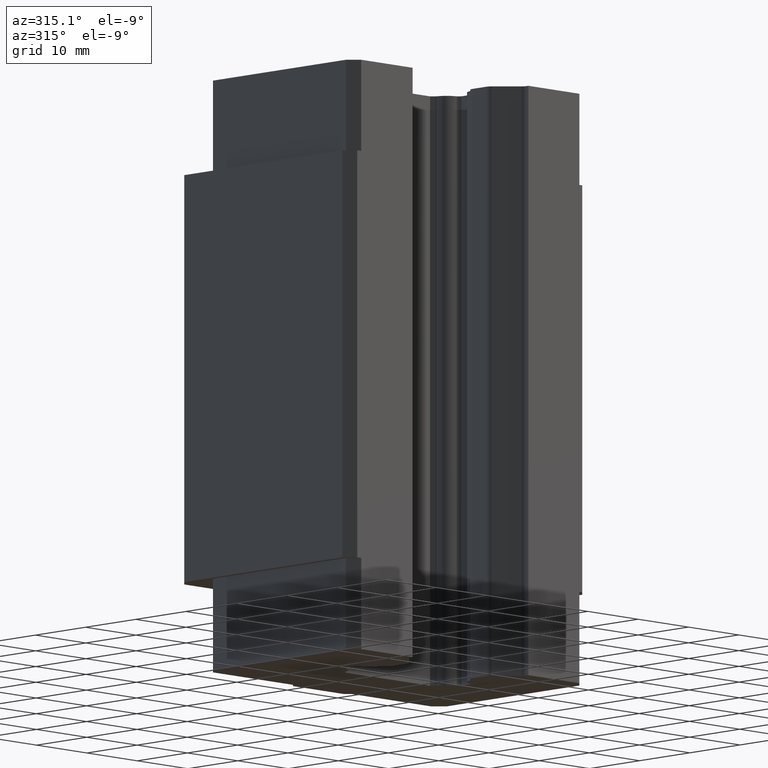
[diagram: clean part render]
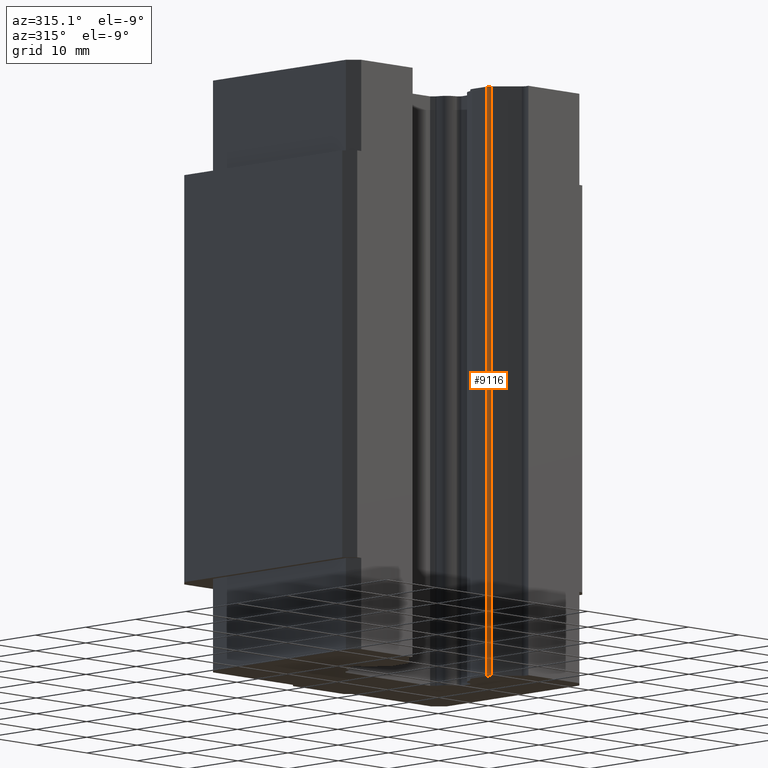
[diagram: same view with one face highlighted and labeled with its STEP entity id]
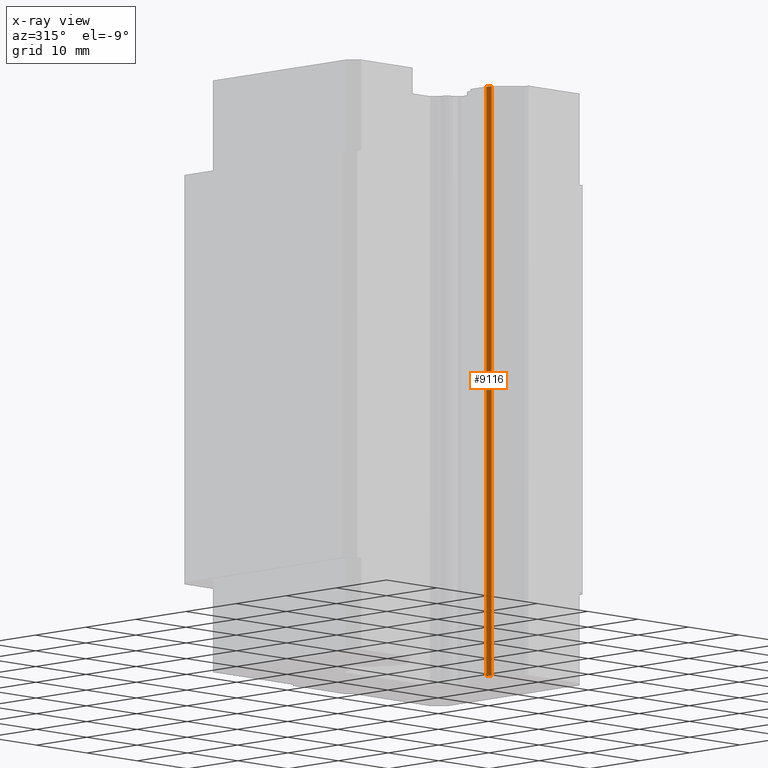
[diagram: x-ray of the same camera — body ghosted, the highlighted face saturated]
A machine part, auxiliary view. The second image highlights one B-rep face of the part: STEP entity #9116.
The next image is the same camera in x-ray: the body ghosted, the highlighted face saturated — about 0% of this face is hidden behind the body in this view.
In plain terms, the highlighted cylindrical surface (edge-blend (fillet) strip) has radius 1 mm, axis along (0, 0, 1).
Its self-contained STEP definition (entity closure, byte-faithful):
#2588 = CARTESIAN_POINT ( 'NONE',  ( 7.900000000000227700, -11.74571559084000000, 42.00000000000000700 ) ) ;
#2652 = DIRECTION ( 'NONE',  ( 0.0000000000000000000, 0.0000000000000000000, 1.000000000000000000 ) ) ;
#2653 = VECTOR ( 'NONE', #2652, 1000.000000000000000 ) ;
#2654 = CARTESIAN_POINT ( 'NONE',  ( 7.900000000000455100, -11.74571559084000000, -29.00000000000000000 ) ) ;
#2655 = LINE ( 'NONE', #2654, #2653 ) ;
#2656 = DIRECTION ( 'NONE',  ( 1.000000000000000000, 0.0000000000000000000, 0.0000000000000000000 ) ) ;
#2657 = DIRECTION ( 'NONE',  ( 0.0000000000000000000, 0.0000000000000000000, -1.000000000000000000 ) ) ;
#2658 = CARTESIAN_POINT ( 'NONE',  ( 8.900000000001000400, -11.74571559084000000, 42.00000000000000700 ) ) ;
#2659 = AXIS2_PLACEMENT_3D ( 'NONE', #2658, #2657, #2656 ) ;
#2660 = CIRCLE ( 'NONE', #2659, 1.000000000000000900 ) ;
#2699 = CARTESIAN_POINT ( 'NONE',  ( 8.192893218813999600, -12.45282237203000100, -29.00000000000000000 ) ) ;
#2700 = LINE ( 'NONE', #2699, #2763 ) ;
#2701 = CARTESIAN_POINT ( 'NONE',  ( 8.192893218813601700, -12.45282237202960500, -42.00000000000000000 ) ) ;
#2702 = CARTESIAN_POINT ( 'NONE',  ( 7.900000000000227700, -11.74571559084000000, -42.00000000000000000 ) ) ;
#2703 = DIRECTION ( 'NONE',  ( 1.000000000000000000, 0.0000000000000000000, 0.0000000000000000000 ) ) ;
#2704 = DIRECTION ( 'NONE',  ( 0.0000000000000000000, 0.0000000000000000000, 1.000000000000000000 ) ) ;
#2705 = AXIS2_PLACEMENT_3D ( 'NONE', #2712, #2704, #2703 ) ;
#2706 = CIRCLE ( 'NONE', #2705, 1.000000000000000900 ) ;
#2707 = DIRECTION ( 'NONE',  ( 1.000000000000000000, 0.0000000000000000000, 0.0000000000000000000 ) ) ;
#2708 = DIRECTION ( 'NONE',  ( 0.0000000000000000000, 0.0000000000000000000, 1.000000000000000000 ) ) ;
#2709 = CARTESIAN_POINT ( 'NONE',  ( 8.900000000001000400, -11.74571559084000000, -29.00000000000000000 ) ) ;
#2710 = AXIS2_PLACEMENT_3D ( 'NONE', #2709, #2708, #2707 ) ;
#2712 = CARTESIAN_POINT ( 'NONE',  ( 8.900000000001000400, -11.74571559084000000, -42.00000000000000000 ) ) ;
#2713 = CYLINDRICAL_SURFACE ( 'NONE', #2710, 1.000000000000000900 ) ;
#2714 = FACE_OUTER_BOUND ( 'NONE', #9117, .T. ) ;
#2761 = CARTESIAN_POINT ( 'NONE',  ( 8.192893218813601700, -12.45282237202960500, 42.00000000000000700 ) ) ;
#2762 = DIRECTION ( 'NONE',  ( 0.0000000000000000000, 0.0000000000000000000, -1.000000000000000000 ) ) ;
#2763 = VECTOR ( 'NONE', #2762, 1000.000000000000000 ) ;
#9043 = VERTEX_POINT ( 'NONE', #2588 ) ;
#9072 = ORIENTED_EDGE ( 'NONE', *, *, #9073, .T. ) ;
#9073 = EDGE_CURVE ( 'NONE', #9124, #9043, #2660, .T. ) ;
#9074 = ORIENTED_EDGE ( 'NONE', *, *, #9075, .F. ) ;
#9075 = EDGE_CURVE ( 'NONE', #9120, #9043, #2655, .T. ) ;
#9116 = ADVANCED_FACE ( 'NONE', ( #2714 ), #2713, .T. ) ;
#9117 = EDGE_LOOP ( 'NONE', ( #9118, #9122, #9072, #9074 ) ) ;
#9118 = ORIENTED_EDGE ( 'NONE', *, *, #9119, .T. ) ;
#9119 = EDGE_CURVE ( 'NONE', #9120, #9121, #2706, .T. ) ;
#9120 = VERTEX_POINT ( 'NONE', #2702 ) ;
#9121 = VERTEX_POINT ( 'NONE', #2701 ) ;
#9122 = ORIENTED_EDGE ( 'NONE', *, *, #9123, .F. ) ;
#9123 = EDGE_CURVE ( 'NONE', #9124, #9121, #2700, .T. ) ;
#9124 = VERTEX_POINT ( 'NONE', #2761 ) ;